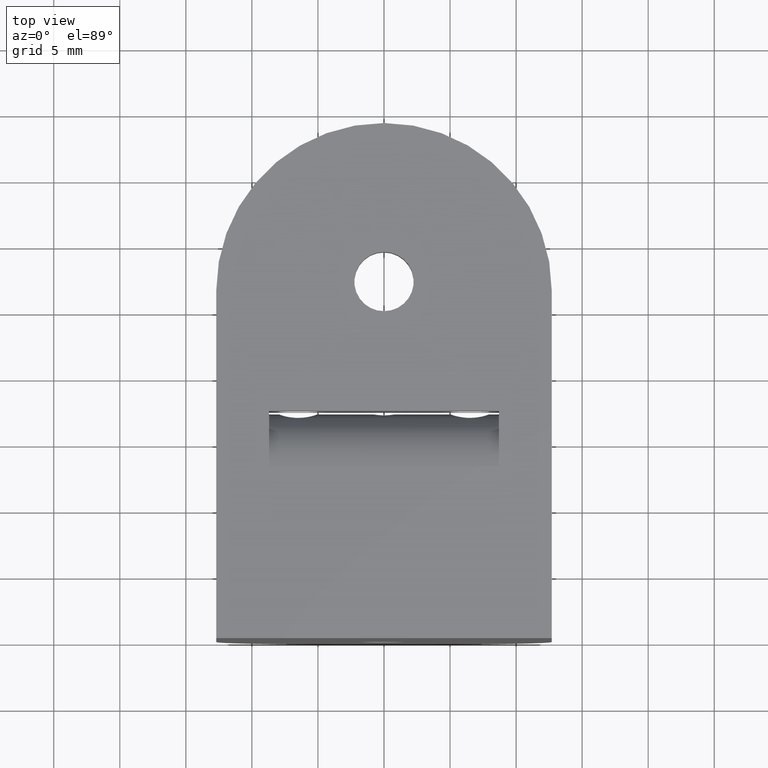
[diagram: clean part render]
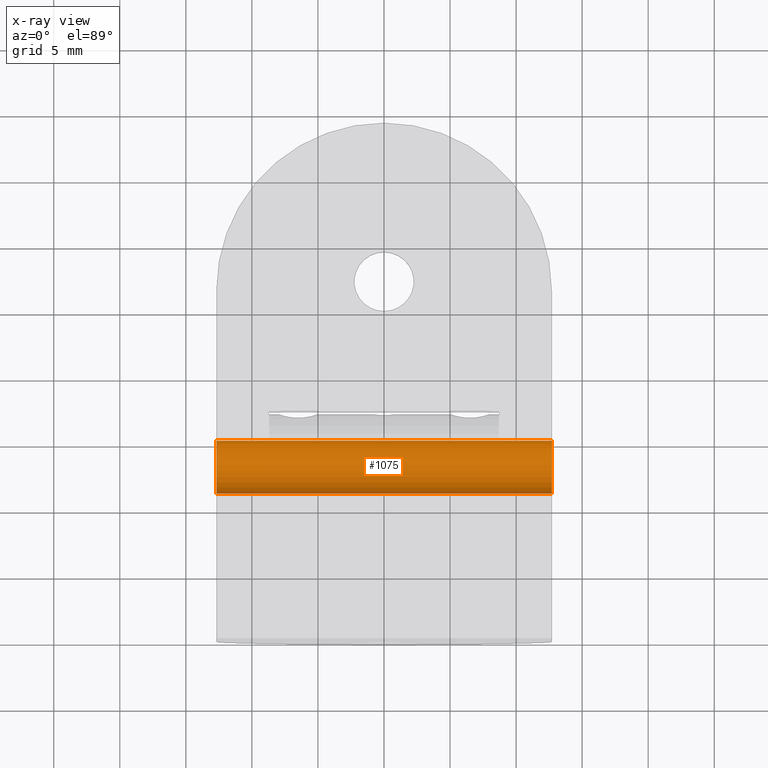
[diagram: x-ray — body ghosted, one internal face saturated and labeled with its STEP entity id]
A machine part, top view, then the same camera in x-ray: the body is ghosted and one INTERNAL B-rep face — a face not visible from any outside direction — is saturated and labeled: STEP entity #1075.
In plain terms, the highlighted cylindrical surface (edge-blend (fillet) strip) has radius 2 mm, axis along (1, 0, -0).
Its self-contained STEP definition (entity closure, byte-faithful):
#36 = VECTOR ( 'NONE', #329, 1000.000000000000000 ) ;
#97 = DIRECTION ( 'NONE',  ( 0.0000000000000000000, -1.000000000000000000, 0.0000000000000000000 ) ) ;
#102 = AXIS2_PLACEMENT_3D ( 'NONE', #687, #698, #2561 ) ;
#137 = AXIS2_PLACEMENT_3D ( 'NONE', #749, #2395, #97 ) ;
#190 = ORIENTED_EDGE ( 'NONE', *, *, #669, .F. ) ;
#329 = DIRECTION ( 'NONE',  ( 1.000000000000000000, 7.453925758984099900E-017, -1.380757987878616800E-016 ) ) ;
#330 = EDGE_LOOP ( 'NONE', ( #1240, #190, #336, #2830 ) ) ;
#336 = ORIENTED_EDGE ( 'NONE', *, *, #2765, .T. ) ;
#388 = CARTESIAN_POINT ( 'NONE',  ( 12.70000000000002900, 11.00000000000000400, -3.999999999999996400 ) ) ;
#571 = CARTESIAN_POINT ( 'NONE',  ( -12.69999999999997100, 15.00000000000000400, -3.999999999999997300 ) ) ;
#669 = EDGE_CURVE ( 'NONE', #772, #1077, #1308, .T. ) ;
#676 = CARTESIAN_POINT ( 'NONE',  ( -12.69999999999997100, 11.00000000000000000, -3.999999999999996400 ) ) ;
#687 = CARTESIAN_POINT ( 'NONE',  ( -12.69999999999997100, 13.00000000000000200, -3.999999999999995600 ) ) ;
#698 = DIRECTION ( 'NONE',  ( 1.000000000000000000, 7.453925758984099900E-017, -1.380757987878616800E-016 ) ) ;
#749 = CARTESIAN_POINT ( 'NONE',  ( 12.70000000000002900, 13.00000000000000500, -3.999999999999999100 ) ) ;
#772 = VERTEX_POINT ( 'NONE', #571 ) ;
#782 = CARTESIAN_POINT ( 'NONE',  ( -12.69999999999997100, 15.00000000000000400, -3.999999999999995600 ) ) ;
#784 = CIRCLE ( 'NONE', #137, 2.000000000000001800 ) ;
#986 = LINE ( 'NONE', #2943, #36 ) ;
#1075 = ADVANCED_FACE ( 'NONE', ( #2986 ), #1504, .T. ) ;
#1077 = VERTEX_POINT ( 'NONE', #676 ) ;
#1224 = DIRECTION ( 'NONE',  ( -1.000000000000000000, -7.453925758984099900E-017, 1.380757987878616800E-016 ) ) ;
#1228 = AXIS2_PLACEMENT_3D ( 'NONE', #2647, #1224, #2903 ) ;
#1240 = ORIENTED_EDGE ( 'NONE', *, *, #2160, .F. ) ;
#1308 = CIRCLE ( 'NONE', #1228, 2.000000000000001800 ) ;
#1331 = VERTEX_POINT ( 'NONE', #388 ) ;
#1351 = EDGE_CURVE ( 'NONE', #1807, #1331, #784, .T. ) ;
#1504 = CYLINDRICAL_SURFACE ( 'NONE', #102, 2.000000000000001800 ) ;
#1807 = VERTEX_POINT ( 'NONE', #2827 ) ;
#2160 = EDGE_CURVE ( 'NONE', #1077, #1331, #986, .T. ) ;
#2325 = VECTOR ( 'NONE', #2435, 1000.000000000000000 ) ;
#2395 = DIRECTION ( 'NONE',  ( -1.000000000000000000, -7.453925758984099900E-017, 1.380757987878616800E-016 ) ) ;
#2435 = DIRECTION ( 'NONE',  ( 1.000000000000000000, 7.453925758984099900E-017, -1.380757987878616800E-016 ) ) ;
#2561 = DIRECTION ( 'NONE',  ( 0.0000000000000000000, 1.000000000000000000, 0.0000000000000000000 ) ) ;
#2647 = CARTESIAN_POINT ( 'NONE',  ( -12.69999999999997100, 13.00000000000000200, -3.999999999999995600 ) ) ;
#2765 = EDGE_CURVE ( 'NONE', #772, #1807, #2963, .T. ) ;
#2827 = CARTESIAN_POINT ( 'NONE',  ( 12.70000000000002900, 15.00000000000000700, -3.999999999999997300 ) ) ;
#2830 = ORIENTED_EDGE ( 'NONE', *, *, #1351, .T. ) ;
#2903 = DIRECTION ( 'NONE',  ( 0.0000000000000000000, -1.000000000000000000, 0.0000000000000000000 ) ) ;
#2943 = CARTESIAN_POINT ( 'NONE',  ( -12.69999999999997100, 11.00000000000000000, -3.999999999999994700 ) ) ;
#2963 = LINE ( 'NONE', #782, #2325 ) ;
#2986 = FACE_OUTER_BOUND ( 'NONE', #330, .T. ) ;